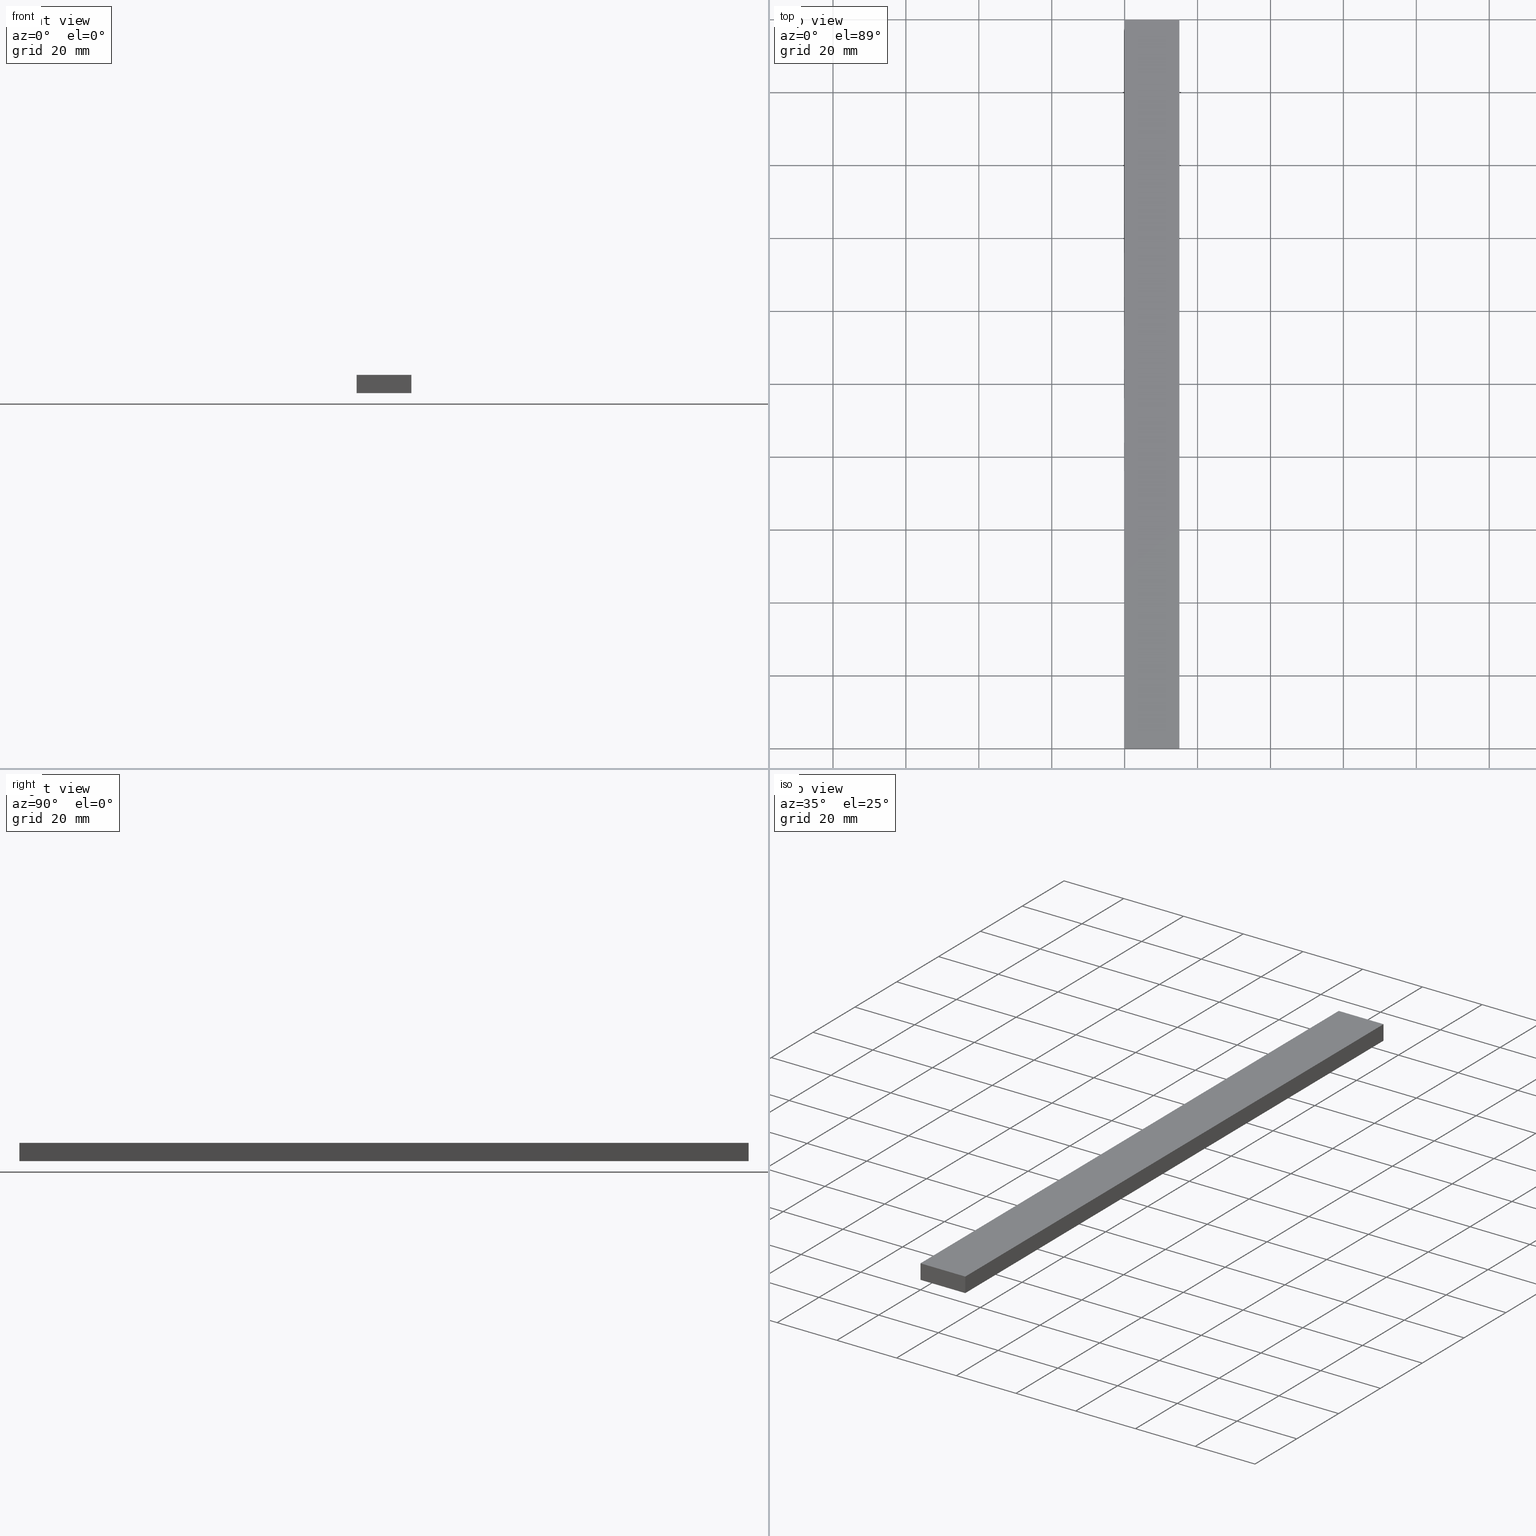
[diagram: canonical four-view strip — front | top / right | iso, engineering-drawing reading convention]
A machine part, canonical four-view strip (front | top / right | iso — engineering-drawing reading convention). The complete STEP part file that produces these views, byte-faithful:
ISO-10303-21;
HEADER;
FILE_DESCRIPTION (( 'STEP AP214' ),
    '1' );
FILE_NAME ('TM_339_5_15.STEP',
    '2016-05-09T04:23:17',
    ( '' ),
    ( '' ),
    'SwSTEP 2.0',
    'SolidWorks 2015',
    '' );
FILE_SCHEMA (( 'AUTOMOTIVE_DESIGN' ));
ENDSEC;

DATA;
#1 = LINE ( 'NONE', #203, #156 ) ;
#2 = MANIFOLD_SOLID_BREP ( '���߰�1', #40 ) ;
#3 = AXIS2_PLACEMENT_3D ( 'NONE', #16, #230, #197 ) ;
#4 = FACE_OUTER_BOUND ( 'NONE', #188, .T. ) ;
#5 = SURFACE_STYLE_FILL_AREA ( #187 ) ;
#6 = ADVANCED_FACE ( 'NONE', ( #100 ), #176, .T. ) ;
#7 = ORIENTED_EDGE ( 'NONE', *, *, #74, .T. ) ;
#8 = ADVANCED_FACE ( 'NONE', ( #45 ), #142, .F. ) ;
#9 = SURFACE_STYLE_FILL_AREA ( #232 ) ;
#10 = ADVANCED_FACE ( 'NONE', ( #4 ), #175, .T. ) ;
#11 =( NAMED_UNIT ( * ) SI_UNIT ( $, .STERADIAN. ) SOLID_ANGLE_UNIT ( ) );
#12 = ADVANCED_FACE ( 'NONE', ( #237 ), #47, .T. ) ;
#13 = CARTESIAN_POINT ( 'NONE',  ( 0.0000000000000000000, 200.0000000000000000, 0.0000000000000000000 ) ) ;
#14 =( NAMED_UNIT ( * ) PLANE_ANGLE_UNIT ( ) SI_UNIT ( $, .RADIAN. ) );
#15 = APPLICATION_CONTEXT ( 'automotive_design' ) ;
#16 = CARTESIAN_POINT ( 'NONE',  ( 0.0000000000000000000, 0.0000000000000000000, 0.0000000000000000000 ) ) ;
#17 = DIRECTION ( 'NONE',  ( 0.0000000000000000000, 0.0000000000000000000, 1.000000000000000000 ) ) ;
#18 = LINE ( 'NONE', #127, #220 ) ;
#19 = VECTOR ( 'NONE', #215, 1000.000000000000000 ) ;
#20 = CARTESIAN_POINT ( 'NONE',  ( 15.00000000000000000, 0.0000000000000000000, 0.0000000000000000000 ) ) ;
#21 = CARTESIAN_POINT ( 'NONE',  ( 15.00000000000000000, 1000.000000000000000, 5.000000000000000000 ) ) ;
#22 = VECTOR ( 'NONE', #236, 1000.000000000000000 ) ;
#23 = PRODUCT_DEFINITION_SHAPE ( 'NONE', 'NONE',  #118 ) ;
#24 = LINE ( 'NONE', #86, #163 ) ;
#25 = PRODUCT_DEFINITION_SHAPE ( 'NONE', 'NONE',  #76 ) ;
#26 = DIRECTION ( 'NONE',  ( 1.000000000000000000, 0.0000000000000000000, 0.0000000000000000000 ) ) ;
#27 = VERTEX_POINT ( 'NONE', #59 ) ;
#28 = EDGE_CURVE ( 'NONE', #27, #190, #150, .T. ) ;
#29 = APPLICATION_CONTEXT ( 'automotive_design' ) ;
#30 =( NAMED_UNIT ( * ) SI_UNIT ( $, .STERADIAN. ) SOLID_ANGLE_UNIT ( ) );
#31 = VERTEX_POINT ( 'NONE', #126 ) ;
#32 = CARTESIAN_POINT ( 'NONE',  ( 0.0000000000000000000, 0.0000000000000000000, 0.0000000000000000000 ) ) ;
#33 = DIRECTION ( 'NONE',  ( 0.0000000000000000000, 0.0000000000000000000, -1.000000000000000000 ) ) ;
#34 = DIRECTION ( 'NONE',  ( 0.0000000000000000000, -1.000000000000000000, 0.0000000000000000000 ) ) ;
#35 = ORIENTED_EDGE ( 'NONE', *, *, #169, .F. ) ;
#36 = CONTEXT_DEPENDENT_SHAPE_REPRESENTATION ( #177, #141 ) ;
#37 = AXIS2_PLACEMENT_3D ( 'NONE', #235, #107, #212 ) ;
#38 = MECHANICAL_DESIGN_GEOMETRIC_PRESENTATION_REPRESENTATION (  '', ( #60 ), #139 ) ;
#39 = EDGE_CURVE ( 'NONE', #204, #154, #109, .T. ) ;
#40 = CLOSED_SHELL ( 'NONE', ( #223, #222, #10, #12, #6, #8 ) ) ;
#41 = LINE ( 'NONE', #129, #233 ) ;
#42 = DIRECTION ( 'NONE',  ( 1.000000000000000000, 0.0000000000000000000, 0.0000000000000000000 ) ) ;
#43 = FACE_OUTER_BOUND ( 'NONE', #101, .T. ) ;
#44 = COLOUR_RGB ( '',0.7921568627450980000, 0.8196078431372548800, 0.9333333333333333500 ) ;
#45 = FACE_OUTER_BOUND ( 'NONE', #56, .T. ) ;
#46 = APPLICATION_CONTEXT ( 'automotive_design' ) ;
#47 = PLANE ( 'NONE',  #131 ) ;
#48 = ORIENTED_EDGE ( 'NONE', *, *, #216, .T. ) ;
#49 =( LENGTH_UNIT ( ) NAMED_UNIT ( * ) SI_UNIT ( .MILLI., .METRE. ) );
#50 = ORIENTED_EDGE ( 'NONE', *, *, #62, .T. ) ;
#51 =( NAMED_UNIT ( * ) SI_UNIT ( $, .STERADIAN. ) SOLID_ANGLE_UNIT ( ) );
#52 = DIRECTION ( 'NONE',  ( 1.000000000000000000, 0.0000000000000000000, 0.0000000000000000000 ) ) ;
#53 = CARTESIAN_POINT ( 'NONE',  ( 15.00000000000000000, 200.0000000000000000, 0.0000000000000000000 ) ) ;
#54 = CARTESIAN_POINT ( 'NONE',  ( 0.0000000000000000000, 200.0000000000000000, 0.0000000000000000000 ) ) ;
#55 = CARTESIAN_POINT ( 'NONE',  ( 15.00000000000000000, 0.0000000000000000000, 0.0000000000000000000 ) ) ;
#56 = EDGE_LOOP ( 'NONE', ( #133, #72, #75, #180 ) ) ;
#57 = VERTEX_POINT ( 'NONE', #55 ) ;
#58 = ITEM_DEFINED_TRANSFORMATION ( 'NONE', 'NONE', #73,  #153 ) ;
#59 = CARTESIAN_POINT ( 'NONE',  ( 15.00000000000000000, 200.0000000000000000, 0.0000000000000000000 ) ) ;
#60 = STYLED_ITEM ( 'NONE', ( #123 ), #2 ) ;
#61 = CARTESIAN_POINT ( 'NONE',  ( 15.00000000000000000, 200.0000000000000000, 5.000000000000000000 ) ) ;
#62 = EDGE_CURVE ( 'NONE', #207, #209, #219, .T. ) ;
#63 =( LENGTH_UNIT ( ) NAMED_UNIT ( * ) SI_UNIT ( .MILLI., .METRE. ) );
#64 = APPLICATION_PROTOCOL_DEFINITION ( 'draft international standard', 'automotive_design', 1998, #46 ) ;
#65 = CARTESIAN_POINT ( 'NONE',  ( 0.0000000000000000000, 1000.000000000000000, 0.0000000000000000000 ) ) ;
#66 = DIRECTION ( 'NONE',  ( 0.0000000000000000000, -1.000000000000000000, 0.0000000000000000000 ) ) ;
#67 = DIRECTION ( 'NONE',  ( 1.000000000000000000, -0.0000000000000000000, -0.0000000000000000000 ) ) ;
#68 = FACE_OUTER_BOUND ( 'NONE', #152, .T. ) ;
#69 = PRESENTATION_LAYER_ASSIGNMENT (  '', '', ( #138 ) ) ;
#70 = PRODUCT ( 'rubber foam', 'rubber foam', '', ( #158 ) ) ;
#71 = VECTOR ( 'NONE', #217, 1000.000000000000000 ) ;
#72 = ORIENTED_EDGE ( 'NONE', *, *, #178, .T. ) ;
#73 = AXIS2_PLACEMENT_3D ( 'NONE', #226, #172, #116 ) ;
#74 = EDGE_CURVE ( 'NONE', #190, #31, #117, .T. ) ;
#75 = ORIENTED_EDGE ( 'NONE', *, *, #169, .T. ) ;
#76 = PRODUCT_DEFINITION ( 'UNKNOWN', '', #92, #174 ) ;
#77 = DIRECTION ( 'NONE',  ( -0.0000000000000000000, 1.000000000000000000, 0.0000000000000000000 ) ) ;
#78 = DIRECTION ( 'NONE',  ( -0.0000000000000000000, 1.000000000000000000, 0.0000000000000000000 ) ) ;
#79 = ORIENTED_EDGE ( 'NONE', *, *, #62, .F. ) ;
#80 = SURFACE_STYLE_USAGE ( .BOTH. , #106 ) ;
#81 = CARTESIAN_POINT ( 'NONE',  ( 0.0000000000000000000, 0.0000000000000000000, 0.0000000000000000000 ) ) ;
#82 = CARTESIAN_POINT ( 'NONE',  ( 15.00000000000000000, 1000.000000000000000, 0.0000000000000000000 ) ) ;
#83 = AXIS2_PLACEMENT_3D ( 'NONE', #82, #52, #33 ) ;
#84 = EDGE_CURVE ( 'NONE', #154, #57, #24, .T. ) ;
#85 = APPLICATION_PROTOCOL_DEFINITION ( 'draft international standard', 'automotive_design', 1998, #147 ) ;
#86 = CARTESIAN_POINT ( 'NONE',  ( 0.0000000000000000000, 0.0000000000000000000, 0.0000000000000000000 ) ) ;
#87 = ORIENTED_EDGE ( 'NONE', *, *, #74, .F. ) ;
#88 = EDGE_CURVE ( 'NONE', #190, #207, #1, .T. ) ;
#89 = ORIENTED_EDGE ( 'NONE', *, *, #88, .T. ) ;
#90 = LINE ( 'NONE', #20, #22 ) ;
#91 = PRODUCT ( 'TM_339_5_15', 'TM_339_5_15', '', ( #140 ) ) ;
#92 = PRODUCT_DEFINITION_FORMATION_WITH_SPECIFIED_SOURCE ( 'ANY', '', #91, .NOT_KNOWN. ) ;
#93 = VECTOR ( 'NONE', #108, 1000.000000000000000 ) ;
#94 = ORIENTED_EDGE ( 'NONE', *, *, #159, .F. ) ;
#95 = MECHANICAL_DESIGN_GEOMETRIC_PRESENTATION_REPRESENTATION (  '', ( #138 ), #125 ) ;
#96 =( NAMED_UNIT ( * ) PLANE_ANGLE_UNIT ( ) SI_UNIT ( $, .RADIAN. ) );
#97 = LINE ( 'NONE', #168, #137 ) ;
#98 =( GEOMETRIC_REPRESENTATION_CONTEXT ( 3 ) GLOBAL_UNCERTAINTY_ASSIGNED_CONTEXT ( ( #157 ) ) GLOBAL_UNIT_ASSIGNED_CONTEXT ( ( #124, #181, #51 ) ) REPRESENTATION_CONTEXT ( 'NONE', 'WORKASPACE' ) );
#99 = AXIS2_PLACEMENT_3D ( 'NONE', #13, #77, #119 ) ;
#100 = FACE_OUTER_BOUND ( 'NONE', #196, .T. ) ;
#101 = EDGE_LOOP ( 'NONE', ( #103, #218, #128, #7 ) ) ;
#102 = APPLICATION_PROTOCOL_DEFINITION ( 'draft international standard', 'automotive_design', 1998, #29 ) ;
#103 = ORIENTED_EDGE ( 'NONE', *, *, #178, .F. ) ;
#104 = AXIS2_PLACEMENT_3D ( 'NONE', #81, #192, #228 ) ;
#105 = AXIS2_PLACEMENT_3D ( 'NONE', #113, #78, #26 ) ;
#106 = SURFACE_SIDE_STYLE ('',( #9 ) ) ;
#107 = DIRECTION ( 'NONE',  ( 0.0000000000000000000, 0.0000000000000000000, -1.000000000000000000 ) ) ;
#108 = DIRECTION ( 'NONE',  ( -0.0000000000000000000, -0.0000000000000000000, 1.000000000000000000 ) ) ;
#109 = LINE ( 'NONE', #171, #71 ) ;
#110 = PRODUCT_RELATED_PRODUCT_CATEGORY ( 'part', '', ( #91 ) ) ;
#111 = ORIENTED_EDGE ( 'NONE', *, *, #193, .T. ) ;
#112 = SURFACE_STYLE_USAGE ( .BOTH. , #166 ) ;
#113 = CARTESIAN_POINT ( 'NONE',  ( 0.0000000000000000000, 0.0000000000000000000, 0.0000000000000000000 ) ) ;
#114 = UNCERTAINTY_MEASURE_WITH_UNIT (LENGTH_MEASURE( 1.000000000000000100E-005 ), #49, 'distance_accuracy_value', 'NONE');
#115 = ORIENTED_EDGE ( 'NONE', *, *, #84, .F. ) ;
#116 = DIRECTION ( 'NONE',  ( 1.000000000000000000, 0.0000000000000000000, 0.0000000000000000000 ) ) ;
#117 = LINE ( 'NONE', #21, #19 ) ;
#118 = PRODUCT_DEFINITION ( 'UNKNOWN', '', #135, #189 ) ;
#119 = DIRECTION ( 'NONE',  ( 1.000000000000000000, 0.0000000000000000000, 0.0000000000000000000 ) ) ;
#120 =( NAMED_UNIT ( * ) SI_UNIT ( $, .STERADIAN. ) SOLID_ANGLE_UNIT ( ) );
#121 = VECTOR ( 'NONE', #34, 1000.000000000000000 ) ;
#122 = FILL_AREA_STYLE_COLOUR ( '', #44 ) ;
#123 = PRESENTATION_STYLE_ASSIGNMENT (( #112 ) ) ;
#124 =( LENGTH_UNIT ( ) NAMED_UNIT ( * ) SI_UNIT ( .MILLI., .METRE. ) );
#125 =( GEOMETRIC_REPRESENTATION_CONTEXT ( 3 ) GLOBAL_UNCERTAINTY_ASSIGNED_CONTEXT ( ( #221 ) ) GLOBAL_UNIT_ASSIGNED_CONTEXT ( ( #63, #179, #30 ) ) REPRESENTATION_CONTEXT ( 'NONE', 'WORKASPACE' ) );
#126 = CARTESIAN_POINT ( 'NONE',  ( 15.00000000000000000, 0.0000000000000000000, 5.000000000000000000 ) ) ;
#127 = CARTESIAN_POINT ( 'NONE',  ( 15.00000000000000000, 1000.000000000000000, 0.0000000000000000000 ) ) ;
#128 = ORIENTED_EDGE ( 'NONE', *, *, #28, .T. ) ;
#129 = CARTESIAN_POINT ( 'NONE',  ( 0.0000000000000000000, 0.0000000000000000000, 5.000000000000000000 ) ) ;
#130 = DIRECTION ( 'NONE',  ( -0.0000000000000000000, -0.0000000000000000000, -1.000000000000000000 ) ) ;
#131 = AXIS2_PLACEMENT_3D ( 'NONE', #160, #201, #213 ) ;
#132 = PRESENTATION_STYLE_ASSIGNMENT (( #80 ) ) ;
#133 = ORIENTED_EDGE ( 'NONE', *, *, #84, .T. ) ;
#134 = VECTOR ( 'NONE', #130, 1000.000000000000000 ) ;
#135 = PRODUCT_DEFINITION_FORMATION_WITH_SPECIFIED_SOURCE ( 'ANY', '', #70, .NOT_KNOWN. ) ;
#136 = ORIENTED_EDGE ( 'NONE', *, *, #28, .F. ) ;
#137 = VECTOR ( 'NONE', #66, 1000.000000000000000 ) ;
#138 = STYLED_ITEM ( 'NONE', ( #132 ), #234 ) ;
#139 =( GEOMETRIC_REPRESENTATION_CONTEXT ( 3 ) GLOBAL_UNCERTAINTY_ASSIGNED_CONTEXT ( ( #173 ) ) GLOBAL_UNIT_ASSIGNED_CONTEXT ( ( #210, #14, #120 ) ) REPRESENTATION_CONTEXT ( 'NONE', 'WORKASPACE' ) );
#140 = PRODUCT_CONTEXT ( 'NONE', #147, 'mechanical' ) ;
#141 = PRODUCT_DEFINITION_SHAPE ( 'NONE', 'NONE',  #239 ) ;
#142 = PLANE ( 'NONE',  #105 ) ;
#143 = SHAPE_REPRESENTATION_RELATIONSHIP ( 'NONE' , 'NONE' ,  #198, #234 ) ;
#144 =( GEOMETRIC_REPRESENTATION_CONTEXT ( 3 ) GLOBAL_UNCERTAINTY_ASSIGNED_CONTEXT ( ( #114 ) ) GLOBAL_UNIT_ASSIGNED_CONTEXT ( ( #49, #96, #11 ) ) REPRESENTATION_CONTEXT ( 'NONE', 'WORKASPACE' ) );
#145 = EDGE_LOOP ( 'NONE', ( #231, #94, #50, #48 ) ) ;
#146 = CARTESIAN_POINT ( 'NONE',  ( 0.0000000000000000000, 200.0000000000000000, 5.000000000000000000 ) ) ;
#147 = APPLICATION_CONTEXT ( 'automotive_design' ) ;
#148 = SHAPE_DEFINITION_REPRESENTATION ( #25, #200 ) ;
#149 = DIRECTION ( 'NONE',  ( -1.000000000000000000, -0.0000000000000000000, -0.0000000000000000000 ) ) ;
#150 = LINE ( 'NONE', #53, #93 ) ;
#151 = PRODUCT_RELATED_PRODUCT_CATEGORY ( 'part', '', ( #70 ) ) ;
#152 = EDGE_LOOP ( 'NONE', ( #115, #191, #205, #111 ) ) ;
#153 = AXIS2_PLACEMENT_3D ( 'NONE', #32, #17, #211 ) ;
#154 = VERTEX_POINT ( 'NONE', #185 ) ;
#155 = VECTOR ( 'NONE', #67, 1000.000000000000000 ) ;
#156 = VECTOR ( 'NONE', #165, 1000.000000000000000 ) ;
#157 = UNCERTAINTY_MEASURE_WITH_UNIT (LENGTH_MEASURE( 1.000000000000000100E-005 ), #124, 'distance_accuracy_value', 'NONE');
#158 = PRODUCT_CONTEXT ( 'NONE', #29, 'mechanical' ) ;
#159 = EDGE_CURVE ( 'NONE', #207, #204, #97, .T. ) ;
#160 = CARTESIAN_POINT ( 'NONE',  ( 0.0000000000000000000, 1000.000000000000000, 5.000000000000000000 ) ) ;
#161 = LINE ( 'NONE', #65, #121 ) ;
#162 = DIRECTION ( 'NONE',  ( 1.000000000000000000, -0.0000000000000000000, -0.0000000000000000000 ) ) ;
#163 = VECTOR ( 'NONE', #162, 1000.000000000000000 ) ;
#164 = PLANE ( 'NONE',  #37 ) ;
#165 = DIRECTION ( 'NONE',  ( -1.000000000000000000, -0.0000000000000000000, -0.0000000000000000000 ) ) ;
#166 = SURFACE_SIDE_STYLE ('',( #5 ) ) ;
#167 = SHAPE_DEFINITION_REPRESENTATION ( #23, #198 ) ;
#168 = CARTESIAN_POINT ( 'NONE',  ( 0.0000000000000000000, 1000.000000000000000, 5.000000000000000000 ) ) ;
#169 = EDGE_CURVE ( 'NONE', #31, #204, #41, .T. ) ;
#170 = COLOUR_RGB ( '',0.7921568627450980000, 0.8196078431372548800, 0.9333333333333333500 ) ;
#171 = CARTESIAN_POINT ( 'NONE',  ( 0.0000000000000000000, 0.0000000000000000000, 0.0000000000000000000 ) ) ;
#172 = DIRECTION ( 'NONE',  ( 0.0000000000000000000, 0.0000000000000000000, 1.000000000000000000 ) ) ;
#173 = UNCERTAINTY_MEASURE_WITH_UNIT (LENGTH_MEASURE( 1.000000000000000100E-005 ), #210, 'distance_accuracy_value', 'NONE');
#174 = PRODUCT_DEFINITION_CONTEXT ( 'detailed design', #15, 'design' ) ;
#175 = PLANE ( 'NONE',  #225 ) ;
#176 = PLANE ( 'NONE',  #99 ) ;
#177 =( REPRESENTATION_RELATIONSHIP ('NONE','NONE', #200, #198 ) REPRESENTATION_RELATIONSHIP_WITH_TRANSFORMATION ( #58 )SHAPE_REPRESENTATION_RELATIONSHIP( ) );
#178 = EDGE_CURVE ( 'NONE', #57, #31, #90, .T. ) ;
#179 =( NAMED_UNIT ( * ) PLANE_ANGLE_UNIT ( ) SI_UNIT ( $, .RADIAN. ) );
#180 = ORIENTED_EDGE ( 'NONE', *, *, #39, .T. ) ;
#181 =( NAMED_UNIT ( * ) PLANE_ANGLE_UNIT ( ) SI_UNIT ( $, .RADIAN. ) );
#182 = PLANE ( 'NONE',  #83 ) ;
#183 = CARTESIAN_POINT ( 'NONE',  ( 0.0000000000000000000, 200.0000000000000000, 0.0000000000000000000 ) ) ;
#184 = CARTESIAN_POINT ( 'NONE',  ( 0.0000000000000000000, 200.0000000000000000, 0.0000000000000000000 ) ) ;
#185 = CARTESIAN_POINT ( 'NONE',  ( 0.0000000000000000000, 0.0000000000000000000, 0.0000000000000000000 ) ) ;
#186 = EDGE_CURVE ( 'NONE', #209, #27, #208, .T. ) ;
#187 = FILL_AREA_STYLE ('',( #206 ) ) ;
#188 = EDGE_LOOP ( 'NONE', ( #35, #87, #89, #195 ) ) ;
#189 = PRODUCT_DEFINITION_CONTEXT ( 'detailed design', #46, 'design' ) ;
#190 = VERTEX_POINT ( 'NONE', #61 ) ;
#191 = ORIENTED_EDGE ( 'NONE', *, *, #216, .F. ) ;
#192 = DIRECTION ( 'NONE',  ( 0.0000000000000000000, 0.0000000000000000000, 1.000000000000000000 ) ) ;
#193 = EDGE_CURVE ( 'NONE', #27, #57, #18, .T. ) ;
#194 = CARTESIAN_POINT ( 'NONE',  ( 15.00000000000000000, 1000.000000000000000, 5.000000000000000000 ) ) ;
#195 = ORIENTED_EDGE ( 'NONE', *, *, #159, .T. ) ;
#196 = EDGE_LOOP ( 'NONE', ( #238, #79, #224, #136 ) ) ;
#197 = DIRECTION ( 'NONE',  ( 1.000000000000000000, 0.0000000000000000000, 0.0000000000000000000 ) ) ;
#198 = SHAPE_REPRESENTATION ( 'rubber foam', ( #153 ), #98 ) ;
#199 = DIRECTION ( 'NONE',  ( 0.0000000000000000000, -1.000000000000000000, 0.0000000000000000000 ) ) ;
#200 = SHAPE_REPRESENTATION ( 'TM_339_5_15', ( #104, #73 ), #144 ) ;
#201 = DIRECTION ( 'NONE',  ( -1.000000000000000000, 0.0000000000000000000, 0.0000000000000000000 ) ) ;
#202 = PRESENTATION_LAYER_ASSIGNMENT (  '', '', ( #60 ) ) ;
#203 = CARTESIAN_POINT ( 'NONE',  ( 0.0000000000000000000, 200.0000000000000000, 5.000000000000000000 ) ) ;
#204 = VERTEX_POINT ( 'NONE', #214 ) ;
#205 = ORIENTED_EDGE ( 'NONE', *, *, #186, .T. ) ;
#206 = FILL_AREA_STYLE_COLOUR ( '', #170 ) ;
#207 = VERTEX_POINT ( 'NONE', #146 ) ;
#208 = LINE ( 'NONE', #184, #155 ) ;
#209 = VERTEX_POINT ( 'NONE', #183 ) ;
#210 =( LENGTH_UNIT ( ) NAMED_UNIT ( * ) SI_UNIT ( .MILLI., .METRE. ) );
#211 = DIRECTION ( 'NONE',  ( 1.000000000000000000, 0.0000000000000000000, 0.0000000000000000000 ) ) ;
#212 = DIRECTION ( 'NONE',  ( -1.000000000000000000, 0.0000000000000000000, 0.0000000000000000000 ) ) ;
#213 = DIRECTION ( 'NONE',  ( 0.0000000000000000000, 0.0000000000000000000, 1.000000000000000000 ) ) ;
#214 = CARTESIAN_POINT ( 'NONE',  ( 0.0000000000000000000, 0.0000000000000000000, 5.000000000000000000 ) ) ;
#215 = DIRECTION ( 'NONE',  ( 0.0000000000000000000, -1.000000000000000000, 0.0000000000000000000 ) ) ;
#216 = EDGE_CURVE ( 'NONE', #209, #154, #161, .T. ) ;
#217 = DIRECTION ( 'NONE',  ( -0.0000000000000000000, -0.0000000000000000000, -1.000000000000000000 ) ) ;
#218 = ORIENTED_EDGE ( 'NONE', *, *, #193, .F. ) ;
#219 = LINE ( 'NONE', #54, #134 ) ;
#220 = VECTOR ( 'NONE', #199, 1000.000000000000000 ) ;
#221 = UNCERTAINTY_MEASURE_WITH_UNIT (LENGTH_MEASURE( 1.000000000000000100E-005 ), #63, 'distance_accuracy_value', 'NONE');
#222 = ADVANCED_FACE ( 'NONE', ( #43 ), #182, .T. ) ;
#223 = ADVANCED_FACE ( 'NONE', ( #68 ), #164, .T. ) ;
#224 = ORIENTED_EDGE ( 'NONE', *, *, #88, .F. ) ;
#225 = AXIS2_PLACEMENT_3D ( 'NONE', #194, #227, #42 ) ;
#226 = CARTESIAN_POINT ( 'NONE',  ( 0.0000000000000000000, 0.0000000000000000000, 0.0000000000000000000 ) ) ;
#227 = DIRECTION ( 'NONE',  ( 0.0000000000000000000, 0.0000000000000000000, 1.000000000000000000 ) ) ;
#228 = DIRECTION ( 'NONE',  ( 1.000000000000000000, 0.0000000000000000000, 0.0000000000000000000 ) ) ;
#229 = APPLICATION_PROTOCOL_DEFINITION ( 'draft international standard', 'automotive_design', 1998, #15 ) ;
#230 = DIRECTION ( 'NONE',  ( 0.0000000000000000000, 0.0000000000000000000, 1.000000000000000000 ) ) ;
#231 = ORIENTED_EDGE ( 'NONE', *, *, #39, .F. ) ;
#232 = FILL_AREA_STYLE ('',( #122 ) ) ;
#233 = VECTOR ( 'NONE', #149, 1000.000000000000000 ) ;
#234 = ADVANCED_BREP_SHAPE_REPRESENTATION ( '', ( #2, #153 ), #98 ) ;
#235 = CARTESIAN_POINT ( 'NONE',  ( 0.0000000000000000000, 1000.000000000000000, 0.0000000000000000000 ) ) ;
#236 = DIRECTION ( 'NONE',  ( -0.0000000000000000000, -0.0000000000000000000, 1.000000000000000000 ) ) ;
#237 = FACE_OUTER_BOUND ( 'NONE', #145, .T. ) ;
#238 = ORIENTED_EDGE ( 'NONE', *, *, #186, .F. ) ;
#239 = NEXT_ASSEMBLY_USAGE_OCCURRENCE ( 'NAUO1', ' ', ' ', #76, #118, $ ) ;
ENDSEC;
END-ISO-10303-21;
